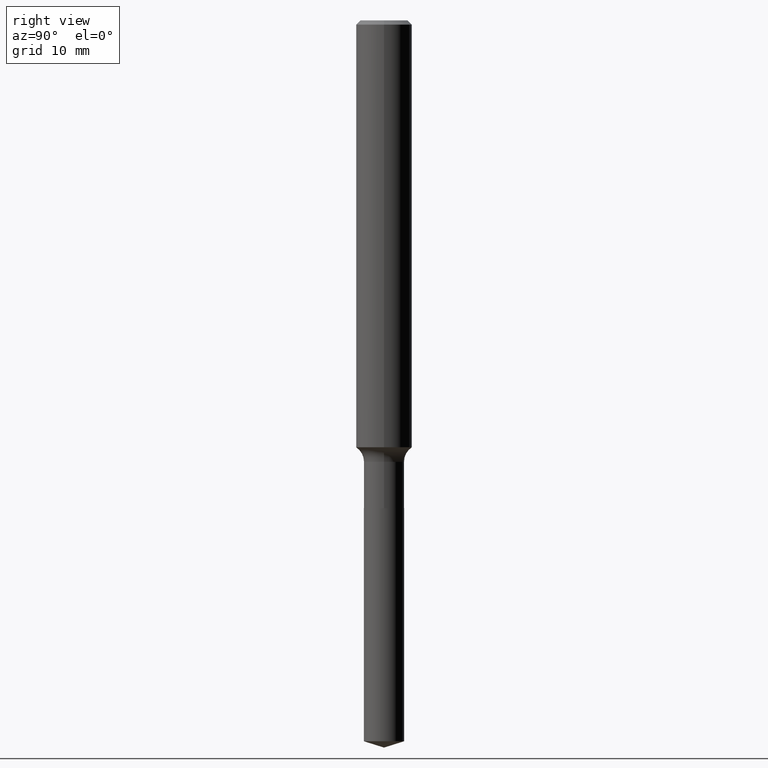
[diagram: clean part render]
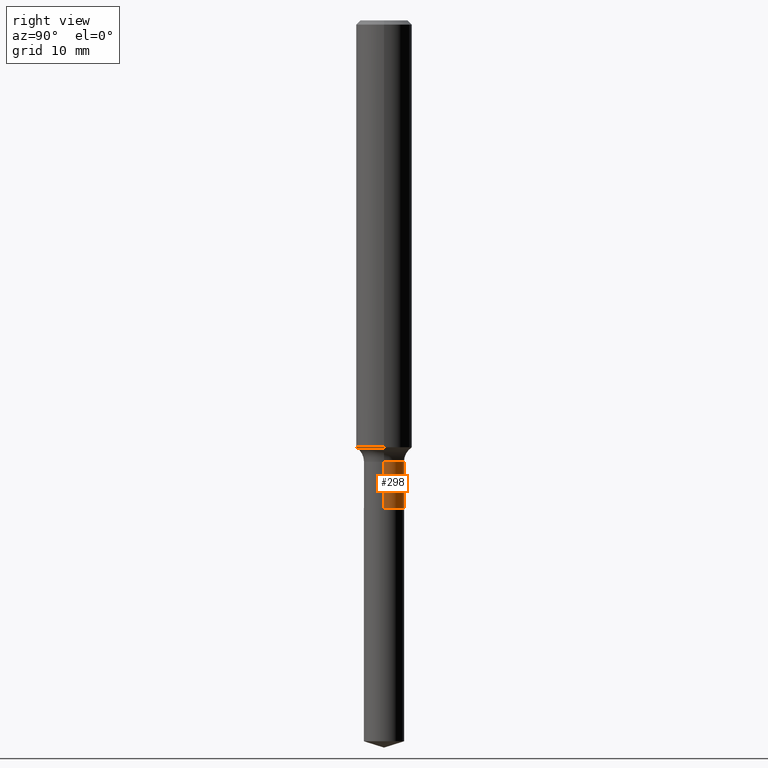
[diagram: same view with one face highlighted and labeled with its STEP entity id]
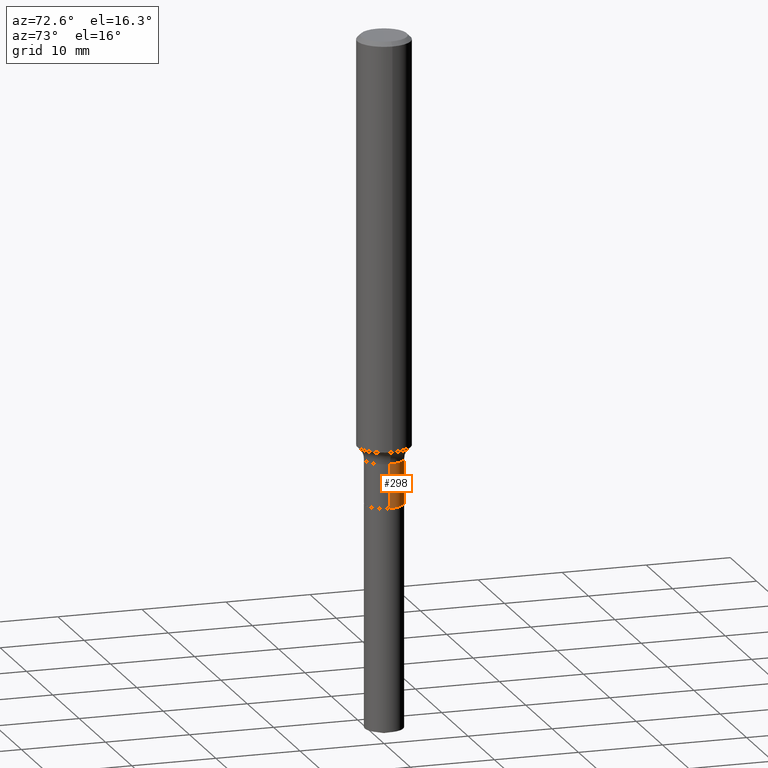
[diagram: same view with one face highlighted and labeled with its STEP entity id]
A machine part, right view. The second image highlights one B-rep face of the part: STEP entity #298.
A second angle (auxiliary view) of the same face is appended — the face is thin or edge-on in the first view.
In plain terms, the highlighted cylindrical surface (edge-blend (fillet) strip) has radius 2.286 mm, axis along (-0, 0, 1).
Its self-contained STEP definition (entity closure, byte-faithful):
#2 = VECTOR ( 'NONE', #419, 39.37007874015748143 ) ;
#33 = FACE_OUTER_BOUND ( 'NONE', #157, .T. ) ;
#38 = VERTEX_POINT ( 'NONE', #369 ) ;
#72 = CARTESIAN_POINT ( 'NONE',  ( 4.824909954603274806E-29, -6.888692681537526817E-15, -1.973000000000000309 ) ) ;
#74 = CIRCLE ( 'NONE', #374, 0.08999999999999999667 ) ;
#90 = DIRECTION ( 'NONE',  ( -2.445468806185136597E-29, 3.491481338843145583E-15, 1.000000000000000000 ) ) ;
#117 = CARTESIAN_POINT ( 'NONE',  ( 0.000000000000000000, 0.000000000000000000, 0.000000000000000000 ) ) ;
#121 = LINE ( 'NONE', #198, #2 ) ;
#147 = ORIENTED_EDGE ( 'NONE', *, *, #427, .T. ) ;
#154 = CARTESIAN_POINT ( 'NONE',  ( 0.08999999999999998279, -7.517159322529290979E-15, -1.973000000000000309 ) ) ;
#156 = AXIS2_PLACEMENT_3D ( 'NONE', #72, #337, #349 ) ;
#157 = EDGE_LOOP ( 'NONE', ( #147, #312, #169, #467 ) ) ;
#169 = ORIENTED_EDGE ( 'NONE', *, *, #193, .F. ) ;
#186 = VERTEX_POINT ( 'NONE', #250 ) ;
#191 = DIRECTION ( 'NONE',  ( -2.445468806185136877E-29, 3.491481338843145188E-15, 1.000000000000000000 ) ) ;
#193 = EDGE_CURVE ( 'NONE', #350, #38, #248, .T. ) ;
#197 = VERTEX_POINT ( 'NONE', #309 ) ;
#198 = CARTESIAN_POINT ( 'NONE',  ( -0.08999999999999999667, 6.394884621840901436E-16, -4.427041581229415120E-30 ) ) ;
#212 = EDGE_CURVE ( 'NONE', #197, #350, #300, .T. ) ;
#231 = CARTESIAN_POINT ( 'NONE',  ( 0.08999999999999999667, -6.284666409917639645E-16, 4.388559098216341933E-30 ) ) ;
#248 = CIRCLE ( 'NONE', #156, 0.08999999999999998279 ) ;
#250 = CARTESIAN_POINT ( 'NONE',  ( -0.08999999999999999667, -6.609699667588991163E-15, -2.179499999999999993 ) ) ;
#254 = AXIS2_PLACEMENT_3D ( 'NONE', #117, #455, #273 ) ;
#273 = DIRECTION ( 'NONE',  ( 1.000000000000000000, -6.982962677686266711E-15, 4.876176775795935793E-29 ) ) ;
#298 = ADVANCED_FACE ( 'NONE', ( #33 ), #376, .T. ) ;
#300 = LINE ( 'NONE', #231, #473 ) ;
#309 = CARTESIAN_POINT ( 'NONE',  ( 0.08999999999999999667, -8.238150219000399563E-15, -2.179499999999999993 ) ) ;
#311 = DIRECTION ( 'NONE',  ( 1.000000000000000000, -6.982962677686269077E-15, 0.000000000000000000 ) ) ;
#312 = ORIENTED_EDGE ( 'NONE', *, *, #326, .T. ) ;
#326 = EDGE_CURVE ( 'NONE', #186, #38, #121, .T. ) ;
#337 = DIRECTION ( 'NONE',  ( -2.445468806185136597E-29, 3.491481338843145583E-15, 1.000000000000000000 ) ) ;
#349 = DIRECTION ( 'NONE',  ( 1.000000000000000000, -6.982962677686269866E-15, 0.000000000000000000 ) ) ;
#350 = VERTEX_POINT ( 'NONE', #154 ) ;
#369 = CARTESIAN_POINT ( 'NONE',  ( -0.08999999999999998279, -6.609699667588991163E-15, -1.973000000000000309 ) ) ;
#374 = AXIS2_PLACEMENT_3D ( 'NONE', #428, #90, #311 ) ;
#376 = CYLINDRICAL_SURFACE ( 'NONE', #254, 0.08999999999999999667 ) ;
#419 = DIRECTION ( 'NONE',  ( -2.445468806185136877E-29, 3.491481338843145188E-15, 1.000000000000000000 ) ) ;
#427 = EDGE_CURVE ( 'NONE', #197, #186, #74, .T. ) ;
#428 = CARTESIAN_POINT ( 'NONE',  ( 5.329899263080504845E-29, -7.609683578008636190E-15, -2.179499999999999993 ) ) ;
#455 = DIRECTION ( 'NONE',  ( -2.445468806185136597E-29, 3.491481338843145583E-15, 1.000000000000000000 ) ) ;
#467 = ORIENTED_EDGE ( 'NONE', *, *, #212, .F. ) ;
#473 = VECTOR ( 'NONE', #191, 39.37007874015748143 ) ;